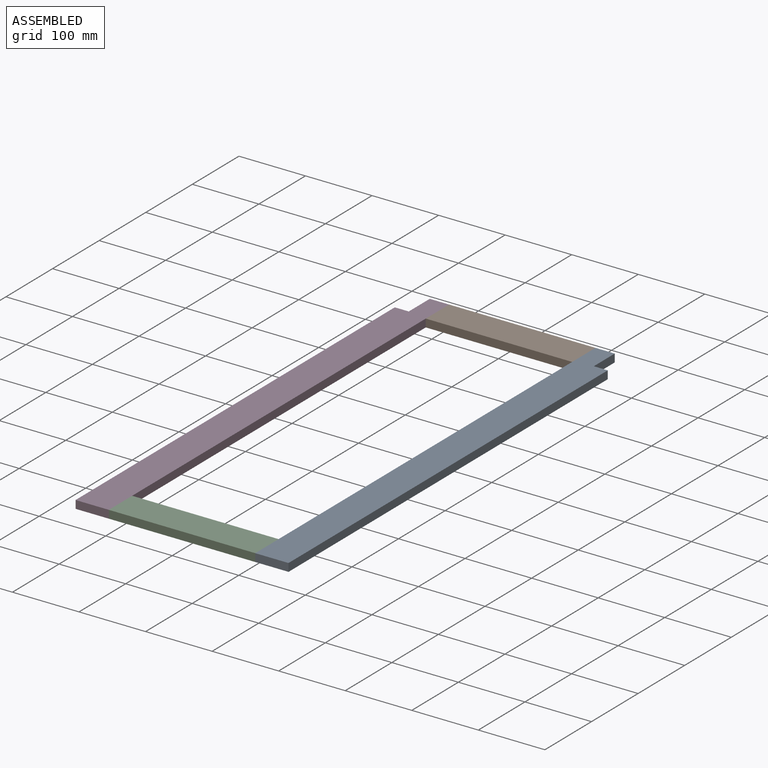
[diagram: assembled view]
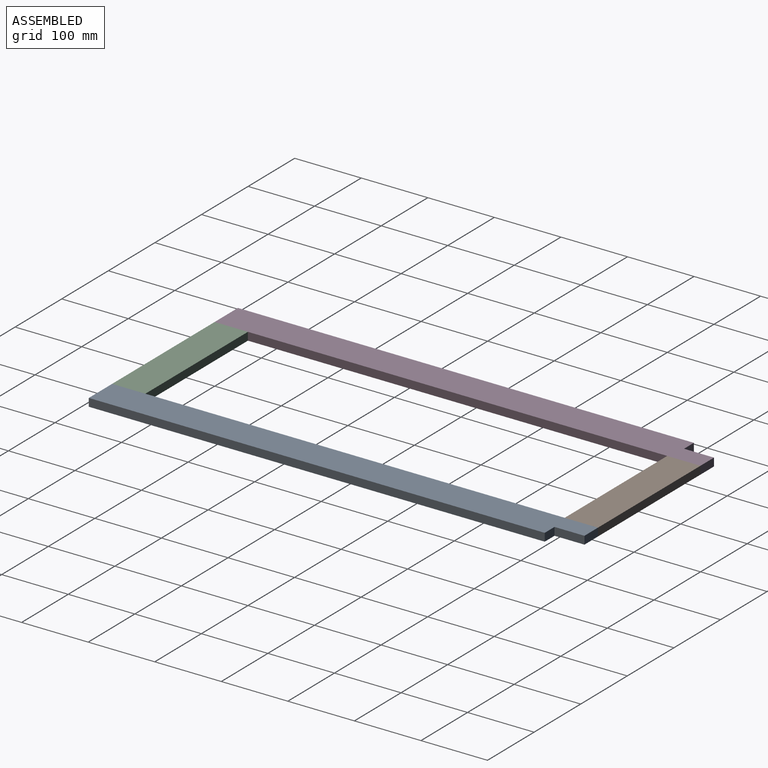
[diagram: assembled view, second angle]
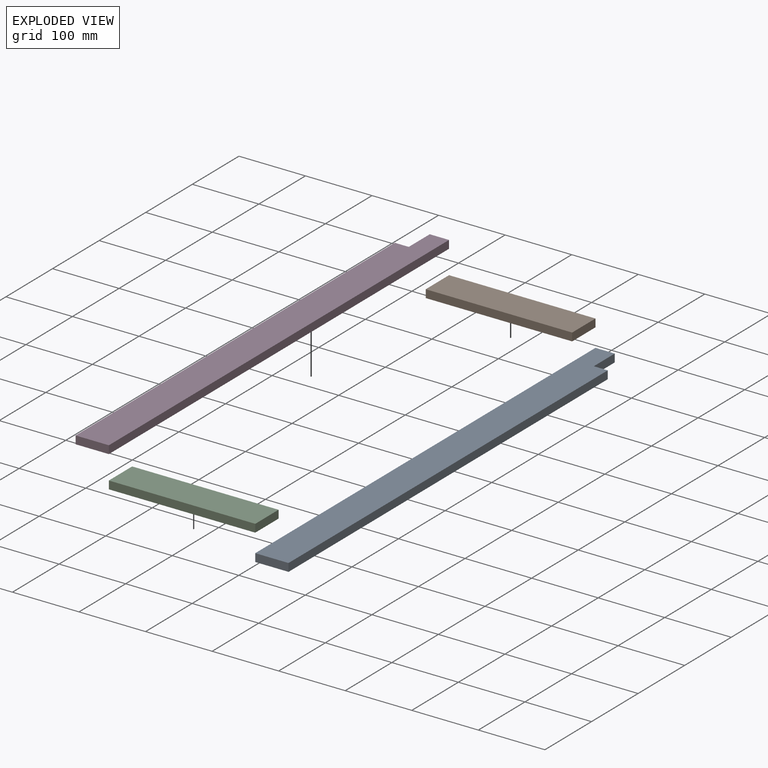
[diagram: exploded view]
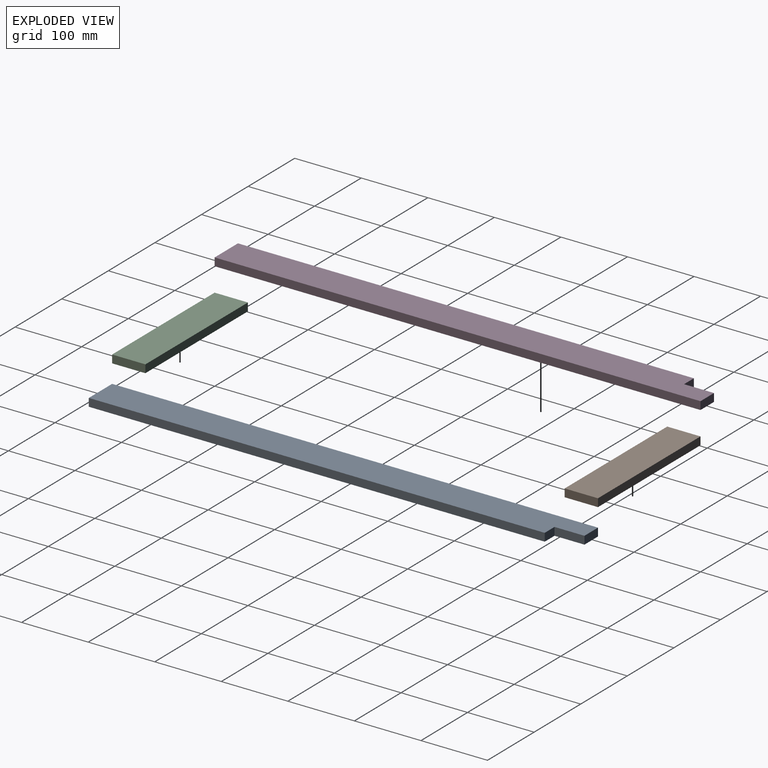
[diagram: exploded view, second angle]
ASSEMBLY  parts=4 mates=3
PART A: 8 faces, bbox 50x730x12 mm
  f0: plane 730x50mm, normal (0,0,1), area 35555mm2, adj f1,f3,f4,f5,f6,f7
  f1: plane 685x12mm, normal (-1,0,0), area 8220mm2, adj f0,f2,f4,f6
  f2: plane 730x50mm, normal (0,0,-1), area 35555mm2, adj f1,f3,f4,f5,f6,f7
  f3: plane 730x12mm, normal (1,0,0), area 8760mm2, adj f0,f2,f4,f5
  f4: plane 50x12mm, normal (0,1,0), area 600mm2, adj f0,f1,f2,f3
  f5: plane 29x12mm, normal (0,-1,0), area 348mm2, adj f0,f2,f3,f7
  f6: plane 21x12mm, normal (0,-1,0), area 252mm2, adj f0,f1,f2,f7
  f7: plane 45x12mm, normal (-1,0,0), area 540mm2, adj f0,f2,f5,f6
PART B: 6 faces, bbox 50x220x12 mm
  f0: plane 220x12mm, normal (1,0,0), area 2640mm2, adj f1,f3,f4,f5
  f1: plane 220x50mm, normal (0,0,1), area 11000mm2, adj f0,f2,f4,f5
  f2: plane 220x12mm, normal (-1,0,0), area 2640mm2, adj f1,f3,f4,f5
  f3: plane 220x50mm, normal (0,0,-1), area 11000mm2, adj f0,f2,f4,f5
  f4: plane 50x12mm, normal (0,1,0), area 600mm2, adj f0,f1,f2,f3
  f5: plane 50x12mm, normal (0,-1,0), area 600mm2, adj f0,f1,f2,f3
PART C: same geometry as B
PART D: same geometry as A
PLACE A rot(axis=(0,0,1),180deg) t=(-165.8,752.32,-81.87)mm
PLACE B rot(axis=(0,0,-1),90deg) t=(-410.8,727.32,-81.87)mm
PLACE C rot(axis=(0,0,-1),90deg) t=(-410.8,47.32,-81.87)mm
PLACE D rot(axis=(1,0,0),180deg) t=(-435.8,752.32,-81.87)mm
MATE fastened B.f1 <-> A.f0  axis (0,0,1) through (-190.8,752.32,-75.87)mm
MATE fastened D.f2 <-> B.f1  axis (0,0,-1) through (-410.8,752.32,-75.87)mm
MATE fastened C.f3 <-> A.f2  axis (0,0,1) through (-190.8,22.32,-87.87)mm
